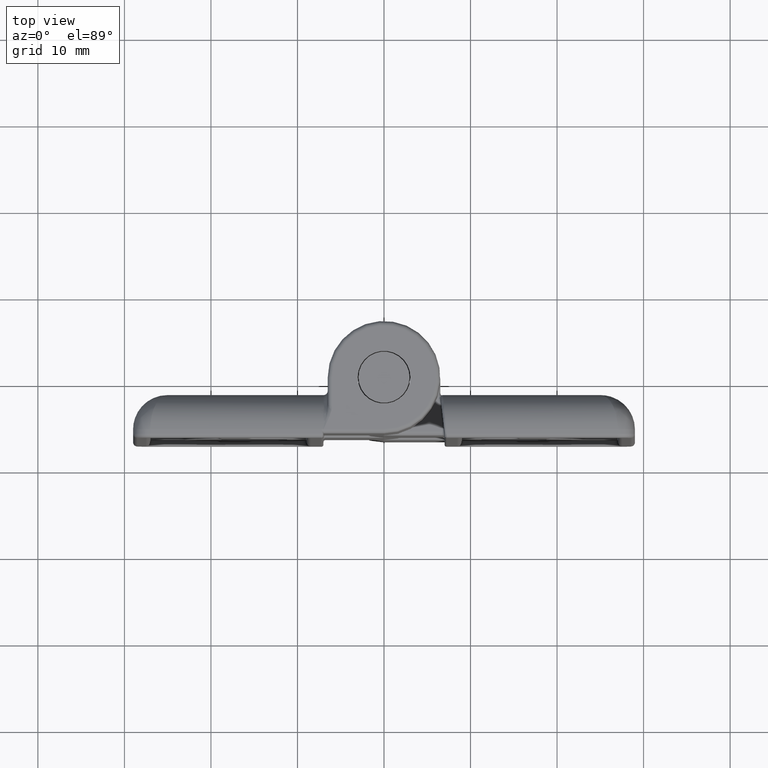
[diagram: clean part render]
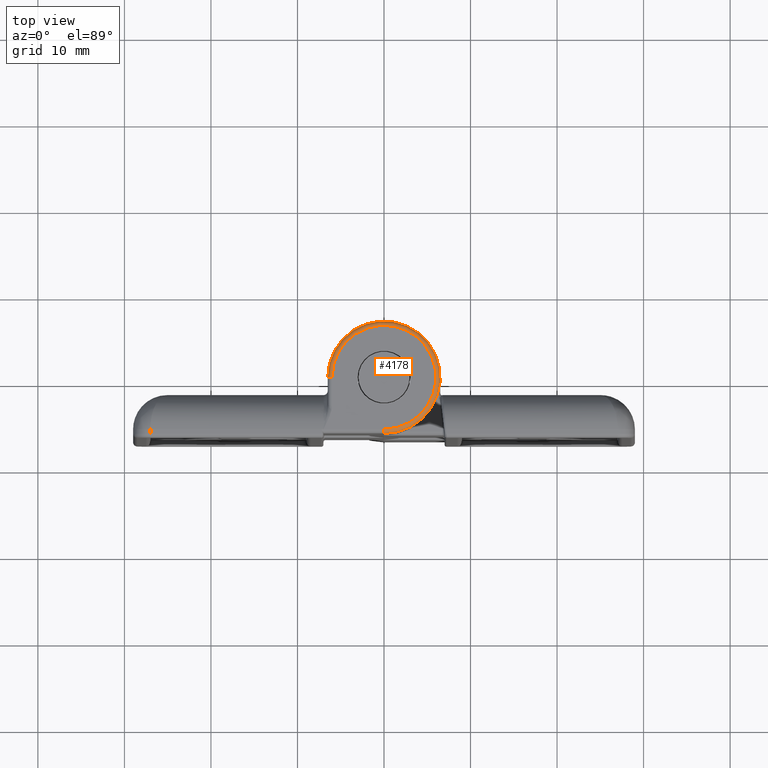
[diagram: same view with one face highlighted and labeled with its STEP entity id]
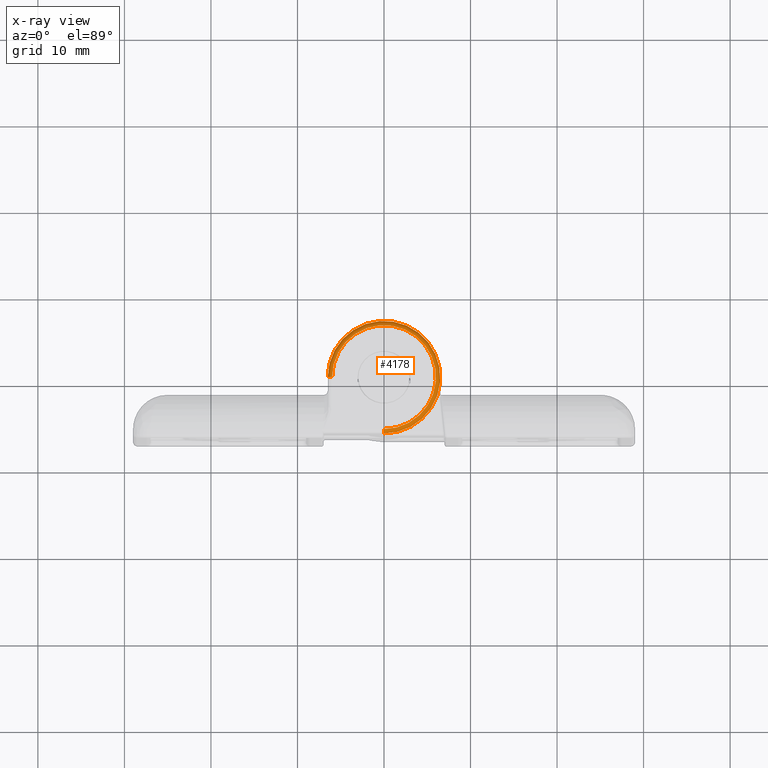
[diagram: x-ray of the same camera — body ghosted, the highlighted face saturated]
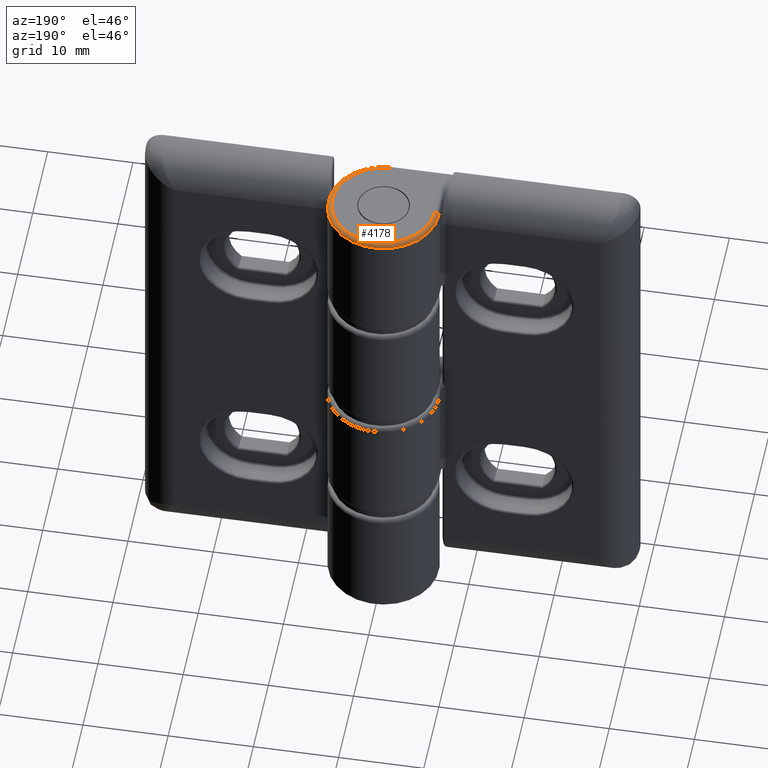
[diagram: same view with one face highlighted and labeled with its STEP entity id]
A machine part, top view. The second image highlights one B-rep face of the part: STEP entity #4178.
The next image is the same camera in x-ray: the body ghosted, the highlighted face saturated — about 0% of this face is hidden behind the body in this view.
A second angle (auxiliary view) of the same face is appended — the face is thin or edge-on in the first view.
In plain terms, the highlighted toroidal blend (fillet) surface has major radius 6 mm and minor (blend) radius 0.5 mm.
Its self-contained STEP definition (entity closure, byte-faithful):
#76=TOROIDAL_SURFACE('',#4509,6.,0.5);
#388=FACE_OUTER_BOUND('',#689,.T.);
#689=EDGE_LOOP('',(#2975,#2976,#2977,#2978));
#963=CIRCLE('',#4449,6.);
#995=CIRCLE('',#4508,0.5);
#996=CIRCLE('',#4510,6.5);
#997=CIRCLE('',#4511,0.5);
#1811=VERTEX_POINT('',#6580);
#1813=VERTEX_POINT('',#6583);
#1881=VERTEX_POINT('',#7148);
#1887=VERTEX_POINT('',#7280);
#2174=EDGE_CURVE('',#1813,#1811,#963,.T.);
#2279=EDGE_CURVE('',#1887,#1813,#995,.T.);
#2280=EDGE_CURVE('',#1887,#1881,#996,.T.);
#2281=EDGE_CURVE('',#1881,#1811,#997,.T.);
#2975=ORIENTED_EDGE('',*,*,#2280,.F.);
#2976=ORIENTED_EDGE('',*,*,#2279,.T.);
#2977=ORIENTED_EDGE('',*,*,#2174,.T.);
#2978=ORIENTED_EDGE('',*,*,#2281,.F.);
#4178=ADVANCED_FACE('',(#388),#76,.T.);
#4449=AXIS2_PLACEMENT_3D('',#6584,#5082,#5083);
#4508=AXIS2_PLACEMENT_3D('',#7295,#5245,#5246);
#4509=AXIS2_PLACEMENT_3D('',#7296,#5247,#5248);
#4510=AXIS2_PLACEMENT_3D('',#7297,#5249,#5250);
#4511=AXIS2_PLACEMENT_3D('',#7298,#5251,#5252);
#5082=DIRECTION('center_axis',(0.,1.,0.));
#5083=DIRECTION('ref_axis',(1.,0.,0.));
#5245=DIRECTION('center_axis',(0.,0.,-1.));
#5246=DIRECTION('ref_axis',(1.,0.,0.));
#5247=DIRECTION('center_axis',(0.,1.,0.));
#5248=DIRECTION('ref_axis',(0.,0.,1.));
#5249=DIRECTION('center_axis',(0.,1.,0.));
#5250=DIRECTION('ref_axis',(1.,0.,0.));
#5251=DIRECTION('center_axis',(1.,0.,0.));
#5252=DIRECTION('ref_axis',(0.,0.,1.));
#6580=CARTESIAN_POINT('',(0.,-30.,6.));
#6583=CARTESIAN_POINT('',(6.,-30.,-1.173920587313E-14));
#6584=CARTESIAN_POINT('Origin',(0.,-30.,0.));
#7148=CARTESIAN_POINT('',(1.721049841824E-10,-29.5,6.5));
#7280=CARTESIAN_POINT('',(6.5,-29.5,0.));
#7295=CARTESIAN_POINT('Origin',(6.,-29.5,0.));
#7296=CARTESIAN_POINT('Origin',(0.,-29.5,0.));
#7297=CARTESIAN_POINT('Origin',(0.,-29.5,0.));
#7298=CARTESIAN_POINT('Origin',(0.,-29.5,6.));